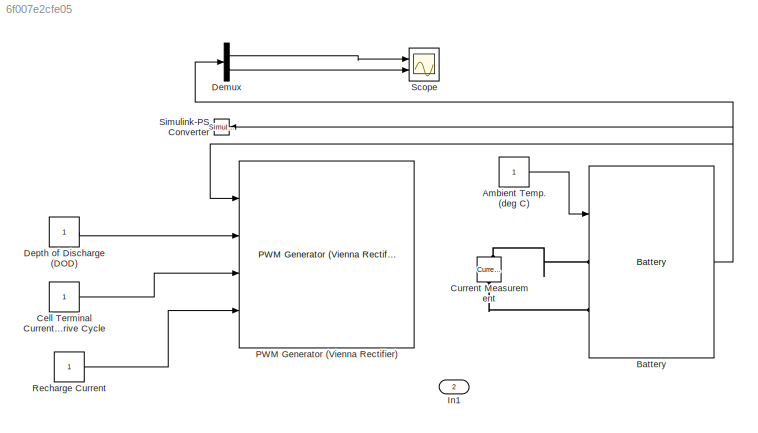
MODEL slx_6f007e2cfe05
KIND model
CONFIG AbsTol = auto
CONFIG EnableMultiTasking = off
CONFIG FixedStep = auto
CONFIG MaxStep = auto
CONFIG MinStep = auto
CONFIG RelTol = 1e-3
CONFIG SampleTimeConstraint = Unconstrained
CONFIG SolverName = VariableStepAuto
CONFIG StartTime = 0.0
CONFIG StopTime = 10.0
BLOCK [Constant] Ambient Temp. (deg C)
BLOCK [Reference] Battery  REF=spsBatteryLib/Battery
  Ports = [1, 1, 0, 0, 0, 2]
  SourceBlock = spsBatteryLib/Battery
  SourceProductBaseCode = PS
  SourceType = Battery
BLOCK [Constant] Cell Terminal Current During Drive Cycle
BLOCK [Reference] Current Measurement  REF=spsCurrentMeasurementLib/Current Measurement
  NameLocation = left
  Ports = [0, 1, 0, 0, 0, 1, 1]
  SourceBlock = spsCurrentMeasurementLib/Current Measurement
  SourceProductBaseCode = PS
  SourceType = Current Measurement
  UserDataPersistent = on
BLOCK [Demux] Demux
  Outputs = 2
  Ports = [1, 2]
BLOCK [Constant] Depth of Discharge (DOD)
BLOCK [Inport] In1
  Port = 2
BLOCK [Reference] PWM Generator (Vienna Rectifier)  REF=eePwmGeneratorViennaRectifier/PWM Generator
(Vienna Rectifier)
  Ports = [4, 1]
  SourceBlock = eePwmGeneratorViennaRectifier/PWM Generator\n(Vienna Rectifier)
  SourceProductBaseCode = PS
  SourceType = PWM Generator (Vienna Rectifier)
BLOCK [Constant] Recharge Current
BLOCK [Scope] Scope
  Floating = off
  NumInputPorts = 2
  Ports = [2]
  ScopeSpecificationString = Simulink.scopes.TimeScopeBlockCfg('CurrentConfiguration', extmgr.ConfigurationSet(extmgr.Configuration('Core','General UI',true),extmgr.Configuration('Core','Source UI',true),extmgr.Configuration('Sources','WiredSimulink',true),extmgr.Configuration('Visuals','Time Domain',true),extmgr.Configuration('Tools','Plot Navigation',true),extmgr.Configuration('Tools','Measurements',true)),'Version','2021b'...<+1ch>
BLOCK [Reference] Simulink-PS Converter  REF=nesl_utility/Simulink-PS
Converter
  Ports = [1, 0, 0, 0, 0, 0, 1]
  SourceBlock = nesl_utility/Simulink-PS\nConverter
  SourceProductBaseCode = PW,SS
  SourceType = Simulink-PS\nConverter
LINE Ambient Temp. (deg C):1 -> Battery:1
NET Battery:1 -> Demux:1, PWM Generator (Vienna Rectifier):1, Simulink-PS Converter:1
LINE Cell Terminal Current During Drive Cycle:1 -> PWM Generator (Vienna Rectifier):3
LINE Demux:1 -> Scope:1
LINE Demux:2 -> Scope:2
LINE Depth of Discharge (DOD):1 -> PWM Generator (Vienna Rectifier):2
LINE Recharge Current:1 -> PWM Generator (Vienna Rectifier):4
PLINE Battery:LConn1 -- Current Measurement:RConn1
PLINE Battery:LConn2 -- Current Measurement:LConn1
note: NET lines group one-source signal fan-out (src -> all destinations, sorted); 1:1 wires keep LINE
